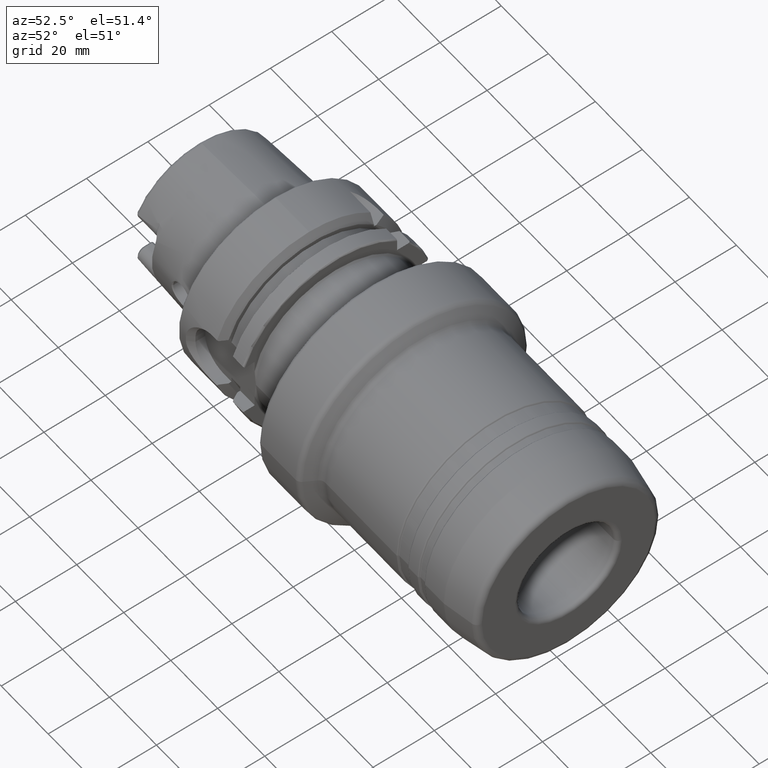
[diagram: clean part render]
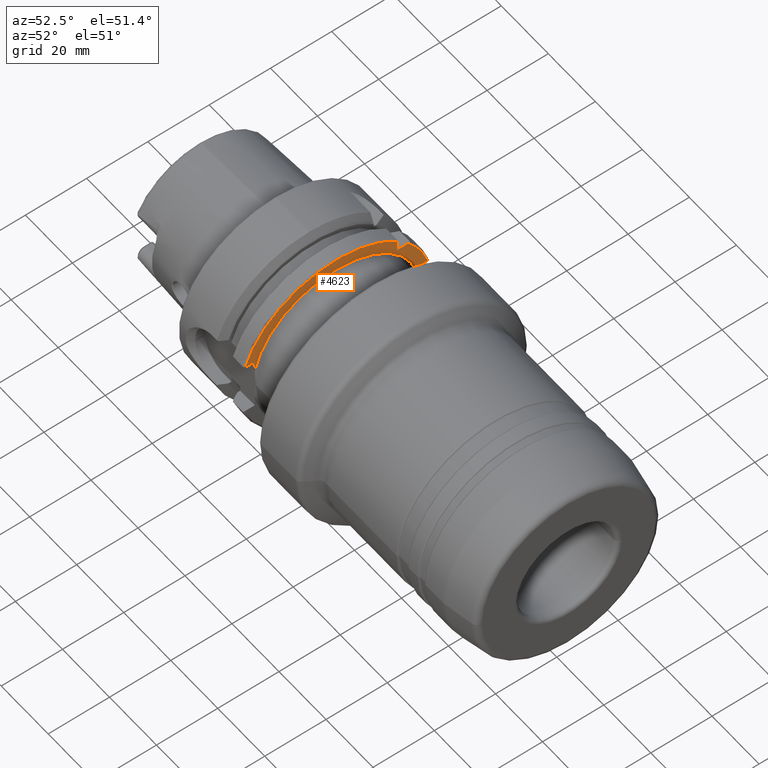
[diagram: same view with one face highlighted and labeled with its STEP entity id]
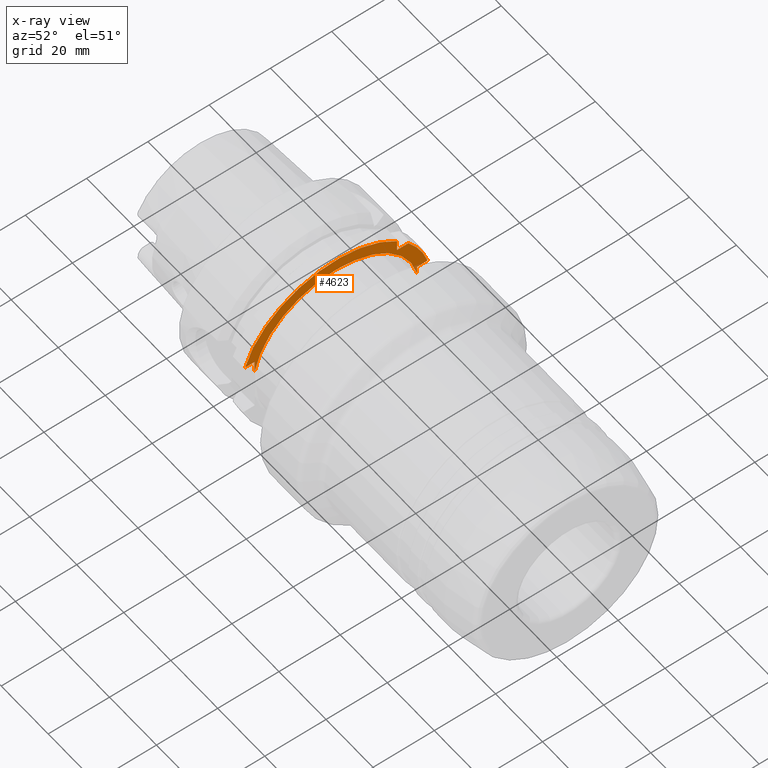
[diagram: x-ray of the same camera — body ghosted, the highlighted face saturated]
A machine part, auxiliary view. The second image highlights one B-rep face of the part: STEP entity #4623.
The next image is the same camera in x-ray: the body ghosted, the highlighted face saturated — about 1% of this face is hidden behind the body in this view.
In plain terms, the highlighted planar face has unit normal (1, 0, 0).
Its self-contained STEP definition (entity closure, byte-faithful):
#794=CARTESIAN_POINT('',(1.023622047244E0,0.E0,0.E0));
#795=DIRECTION('',(-1.E0,0.E0,0.E0));
#796=DIRECTION('',(0.E0,-9.814783411893E-1,1.915731342759E-1));
#797=AXIS2_PLACEMENT_3D('',#794,#795,#796);
#856=DIRECTION('',(0.E0,1.729026335233E-6,9.999999999985E-1));
#857=VECTOR('',#856,1.506750936898E-1);
#858=CARTESIAN_POINT('',(1.023622047244E0,-1.043307347135E0,2.036556149719E-1));
#859=LINE('',#858,#857);
#2270=DIRECTION('',(0.E0,1.E0,0.E0));
#2271=VECTOR('',#2270,1.245981869442E-1);
#2272=CARTESIAN_POINT('',(1.023622047244E0,-1.167905273558E0,
3.543307086614E-1));
#2273=LINE('',#2272,#2271);
#2354=DIRECTION('',(0.E0,-3.192779405703E-6,9.999999999949E-1));
#2355=VECTOR('',#2354,1.113083542122E-1);
#2356=CARTESIAN_POINT('',(1.023622047244E0,1.043307441997E0,2.036522757097E-1));
#2357=LINE('',#2356,#2355);
#2391=DIRECTION('',(0.E0,-1.E0,0.E0));
#2392=VECTOR('',#2391,1.259842519685E-1);
#2393=CARTESIAN_POINT('',(1.023622047244E0,1.169291338583E0,3.149606299213E-1));
#2394=LINE('',#2393,#2392);
#2404=DIRECTION('',(0.E0,7.071067811866E-1,7.071067811865E-1));
#2405=VECTOR('',#2404,1.095285451143E-2);
#2406=CARTESIAN_POINT('',(1.023622047244E0,1.169291338583E0,3.149606299213E-1));
#2407=LINE('',#2406,#2405);
#2593=DIRECTION('',(0.E0,0.E0,-1.E0));
#2594=VECTOR('',#2593,1.450960064824E-1);
#2595=CARTESIAN_POINT('',(1.023622047244E0,7.874015748031E-1,
9.324975812856E-1));
#2596=LINE('',#2595,#2594);
#2610=DIRECTION('',(0.E0,1.E0,0.E0));
#2611=VECTOR('',#2610,1.450960064824E-1);
#2612=CARTESIAN_POINT('',(1.023622047244E0,7.874015748031E-1,
7.874015748031E-1));
#2613=LINE('',#2612,#2611);
#2614=CARTESIAN_POINT('',(1.023622047244E0,0.E0,0.E0));
#2615=DIRECTION('',(1.E0,0.E0,0.E0));
#2616=DIRECTION('',(0.E0,9.644102863722E-1,2.644102863722E-1));
#2617=AXIS2_PLACEMENT_3D('',#2614,#2615,#2616);
#2624=CARTESIAN_POINT('',(1.023622047244E0,0.E0,0.E0));
#2625=DIRECTION('',(1.E0,0.E0,0.E0));
#2626=DIRECTION('',(0.E0,6.451612903226E-1,7.640464053114E-1));
#2627=AXIS2_PLACEMENT_3D('',#2624,#2625,#2626);
#3476=CARTESIAN_POINT('',(1.023622047244E0,1.169291338583E0,3.149606299213E-1));
#3477=CARTESIAN_POINT('',(1.023622047244E0,1.043307086614E0,3.149606299213E-1));
#3478=VERTEX_POINT('',#3476);
#3479=VERTEX_POINT('',#3477);
#3484=CARTESIAN_POINT('',(1.023622047244E0,-1.167905273558E0,
3.543307086614E-1));
#3485=CARTESIAN_POINT('',(1.023622047244E0,-1.043307086614E0,
3.543307086614E-1));
#3486=VERTEX_POINT('',#3484);
#3487=VERTEX_POINT('',#3485);
#3488=CARTESIAN_POINT('',(1.023622047244E0,7.874015748031E-1,
9.324975812856E-1));
#3489=CARTESIAN_POINT('',(1.023622047244E0,7.874015748031E-1,
7.874015748031E-1));
#3490=VERTEX_POINT('',#3488);
#3491=VERTEX_POINT('',#3489);
#3492=CARTESIAN_POINT('',(1.023622047244E0,9.324975812856E-1,
7.874015748031E-1));
#3493=VERTEX_POINT('',#3492);
#3494=CARTESIAN_POINT('',(1.023622047244E0,1.177036176281E0,3.227054676196E-1));
#3495=VERTEX_POINT('',#3494);
#3516=CARTESIAN_POINT('',(1.023622047244E0,-1.043307347135E0,
2.036556149719E-1));
#3517=VERTEX_POINT('',#3516);
#3520=CARTESIAN_POINT('',(1.023622047244E0,1.043307441997E0,2.036522757097E-1));
#3521=VERTEX_POINT('',#3520);
#4597=CARTESIAN_POINT('',(1.023622047244E0,0.E0,0.E0));
#4598=DIRECTION('',(1.E0,0.E0,0.E0));
#4599=DIRECTION('',(0.E0,-1.E0,0.E0));
#4600=AXIS2_PLACEMENT_3D('',#4597,#4598,#4599);
#4601=PLANE('',#4600);
#4602=ORIENTED_EDGE('',*,*,#4561,.F.);
#4604=ORIENTED_EDGE('',*,*,#4603,.T.);
#4606=ORIENTED_EDGE('',*,*,#4605,.F.);
#4608=ORIENTED_EDGE('',*,*,#4607,.F.);
#4610=ORIENTED_EDGE('',*,*,#4609,.T.);
#4612=ORIENTED_EDGE('',*,*,#4611,.T.);
#4614=ORIENTED_EDGE('',*,*,#4613,.F.);
#4616=ORIENTED_EDGE('',*,*,#4615,.F.);
#4618=ORIENTED_EDGE('',*,*,#4617,.T.);
#4620=ORIENTED_EDGE('',*,*,#4619,.F.);
#4621=EDGE_LOOP('',(#4602,#4604,#4606,#4608,#4610,#4612,#4614,#4616,#4618,
#4620));
#4622=FACE_OUTER_BOUND('',#4621,.F.);
#4623=ADVANCED_FACE('',(#4622),#4601,.T.);
#798=CIRCLE('',#797,1.063E0);
#2618=CIRCLE('',#2617,1.220472440945E0);
#2628=CIRCLE('',#2627,1.220472440945E0);
#4561=EDGE_CURVE('',#3517,#3521,#798,.T.);
#4603=EDGE_CURVE('',#3517,#3487,#859,.T.);
#4605=EDGE_CURVE('',#3486,#3487,#2273,.T.);
#4607=EDGE_CURVE('',#3490,#3486,#2628,.T.);
#4609=EDGE_CURVE('',#3490,#3491,#2596,.T.);
#4611=EDGE_CURVE('',#3491,#3493,#2613,.T.);
#4613=EDGE_CURVE('',#3495,#3493,#2618,.T.);
#4615=EDGE_CURVE('',#3478,#3495,#2407,.T.);
#4617=EDGE_CURVE('',#3478,#3479,#2394,.T.);
#4619=EDGE_CURVE('',#3521,#3479,#2357,.T.);